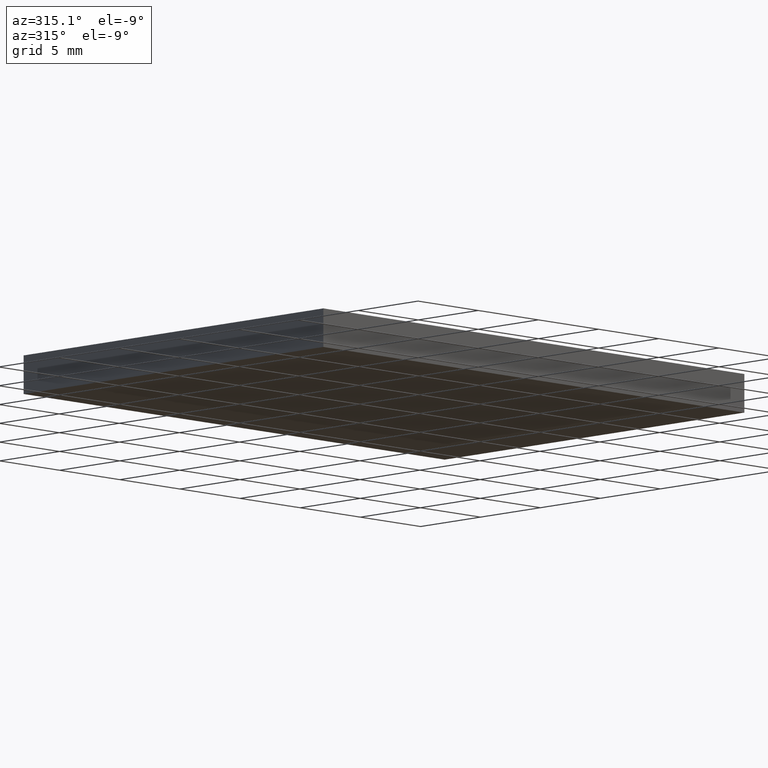
[diagram: clean part render]
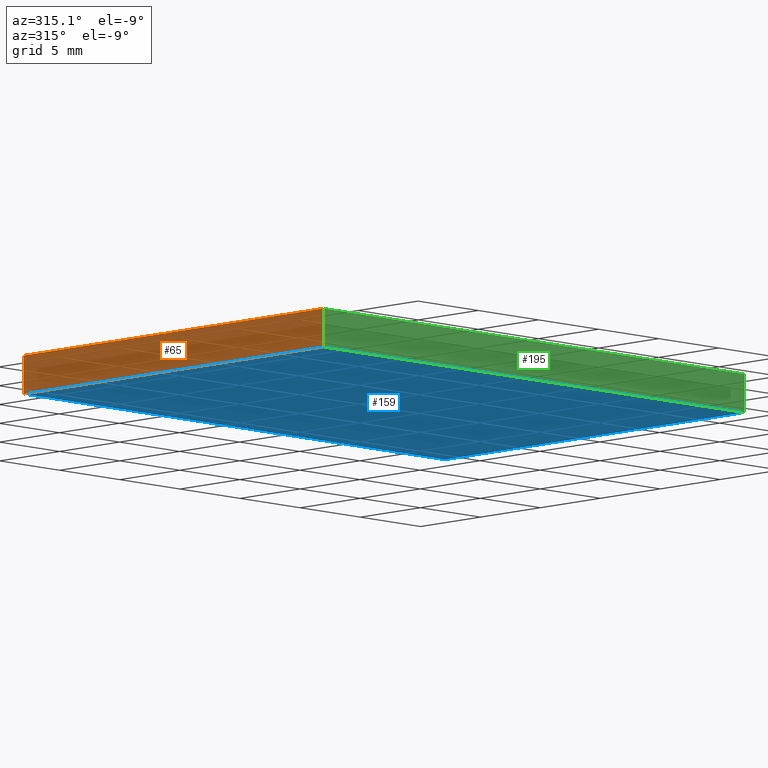
[diagram: same view with three faces highlighted in distinct colors, each labeled with its STEP entity id]
A machine part, auxiliary view with three faces highlighted in distinct colors.
Their STEP definitions:

[orange] entity #65 — the highlighted planar face has unit normal (1, 0, -0).
#13 = FACE_OUTER_BOUND ( 'NONE', #76, .T. ) ;
#17 = EDGE_CURVE ( 'NONE', #172, #158, #48, .T. ) ;
#20 = CARTESIAN_POINT ( 'NONE',  ( 91.11498394228368600, 74.06324183452657900, 2.299999999999999800 ) ) ;
#21 = CARTESIAN_POINT ( 'NONE',  ( 91.11498394228368600, 74.06324183452657900, 2.299999999999999800 ) ) ;
#24 = DIRECTION ( 'NONE',  ( 1.000000000000000000, 0.0000000000000000000, -0.0000000000000000000 ) ) ;
#26 = VECTOR ( 'NONE', #129, 1000.000000000000000 ) ;
#29 = LINE ( 'NONE', #164, #153 ) ;
#31 = LINE ( 'NONE', #20, #26 ) ;
#33 = VECTOR ( 'NONE', #50, 1000.000000000000000 ) ;
#36 = ORIENTED_EDGE ( 'NONE', *, *, #85, .F. ) ;
#40 = LINE ( 'NONE', #82, #104 ) ;
#47 = EDGE_CURVE ( 'NONE', #115, #174, #29, .T. ) ;
#48 = LINE ( 'NONE', #132, #33 ) ;
#49 = CARTESIAN_POINT ( 'NONE',  ( 91.11498394228368600, 49.06324183452660000, 2.299999999999999800 ) ) ;
#50 = DIRECTION ( 'NONE',  ( -0.0000000000000000000, -0.0000000000000000000, -1.000000000000000000 ) ) ;
#60 = ORIENTED_EDGE ( 'NONE', *, *, #156, .T. ) ;
#65 = ADVANCED_FACE ( 'NONE', ( #13 ), #112, .F. ) ;
#76 = EDGE_LOOP ( 'NONE', ( #60, #142, #36, #95 ) ) ;
#82 = CARTESIAN_POINT ( 'NONE',  ( 91.11498394228368600, 74.06324183452657900, 0.0000000000000000000 ) ) ;
#84 = CARTESIAN_POINT ( 'NONE',  ( 91.11498394228368600, 74.06324183452657900, 2.299999999999999800 ) ) ;
#85 = EDGE_CURVE ( 'NONE', #172, #115, #31, .T. ) ;
#95 = ORIENTED_EDGE ( 'NONE', *, *, #17, .T. ) ;
#104 = VECTOR ( 'NONE', #137, 1000.000000000000000 ) ;
#108 = DIRECTION ( 'NONE',  ( -0.0000000000000000000, -0.0000000000000000000, -1.000000000000000000 ) ) ;
#112 = PLANE ( 'NONE',  #143 ) ;
#115 = VERTEX_POINT ( 'NONE', #49 ) ;
#129 = DIRECTION ( 'NONE',  ( 0.0000000000000000000, -1.000000000000000000, 0.0000000000000000000 ) ) ;
#132 = CARTESIAN_POINT ( 'NONE',  ( 91.11498394228368600, 74.06324183452657900, 2.299999999999999800 ) ) ;
#134 = DIRECTION ( 'NONE',  ( -0.0000000000000000000, 0.0000000000000000000, -1.000000000000000000 ) ) ;
#136 = CARTESIAN_POINT ( 'NONE',  ( 91.11498394228368600, 49.06324183452660000, 0.0000000000000000000 ) ) ;
#137 = DIRECTION ( 'NONE',  ( 0.0000000000000000000, -1.000000000000000000, 0.0000000000000000000 ) ) ;
#142 = ORIENTED_EDGE ( 'NONE', *, *, #47, .F. ) ;
#143 = AXIS2_PLACEMENT_3D ( 'NONE', #21, #24, #134 ) ;
#153 = VECTOR ( 'NONE', #108, 1000.000000000000000 ) ;
#156 = EDGE_CURVE ( 'NONE', #158, #174, #40, .T. ) ;
#158 = VERTEX_POINT ( 'NONE', #200 ) ;
#164 = CARTESIAN_POINT ( 'NONE',  ( 91.11498394228368600, 49.06324183452660000, 2.299999999999999800 ) ) ;
#172 = VERTEX_POINT ( 'NONE', #84 ) ;
#174 = VERTEX_POINT ( 'NONE', #136 ) ;
#200 = CARTESIAN_POINT ( 'NONE',  ( 91.11498394228368600, 74.06324183452657900, 0.0000000000000000000 ) ) ;

[blue] entity #159 — the highlighted planar face has unit normal (0, 0, 1).
#1 = CARTESIAN_POINT ( 'NONE',  ( 126.1149839422837100, 74.06324183452659300, 0.0000000000000000000 ) ) ;
#3 = VECTOR ( 'NONE', #91, 1000.000000000000000 ) ;
#12 = DIRECTION ( 'NONE',  ( 1.000000000000000000, 0.0000000000000000000, -0.0000000000000000000 ) ) ;
#32 = EDGE_CURVE ( 'NONE', #174, #180, #123, .T. ) ;
#34 = AXIS2_PLACEMENT_3D ( 'NONE', #114, #98, #12 ) ;
#35 = LINE ( 'NONE', #1, #99 ) ;
#40 = LINE ( 'NONE', #82, #104 ) ;
#42 = EDGE_CURVE ( 'NONE', #165, #158, #128, .T. ) ;
#55 = CARTESIAN_POINT ( 'NONE',  ( 126.1149839422837100, 74.06324183452659300, 0.0000000000000000000 ) ) ;
#67 = DIRECTION ( 'NONE',  ( 1.000000000000000000, -1.982541115402065800E-016, 0.0000000000000000000 ) ) ;
#79 = CARTESIAN_POINT ( 'NONE',  ( 91.11498394228368600, 49.06324183452660000, 0.0000000000000000000 ) ) ;
#81 = CARTESIAN_POINT ( 'NONE',  ( 91.11498394228368600, 74.06324183452657900, 0.0000000000000000000 ) ) ;
#82 = CARTESIAN_POINT ( 'NONE',  ( 91.11498394228368600, 74.06324183452657900, 0.0000000000000000000 ) ) ;
#83 = DIRECTION ( 'NONE',  ( 1.110223024625156700E-015, 1.000000000000000000, -0.0000000000000000000 ) ) ;
#91 = DIRECTION ( 'NONE',  ( -1.000000000000000000, -3.965082230804128700E-016, -0.0000000000000000000 ) ) ;
#94 = ORIENTED_EDGE ( 'NONE', *, *, #32, .F. ) ;
#98 = DIRECTION ( 'NONE',  ( 0.0000000000000000000, 0.0000000000000000000, 1.000000000000000000 ) ) ;
#99 = VECTOR ( 'NONE', #83, 1000.000000000000000 ) ;
#103 = ORIENTED_EDGE ( 'NONE', *, *, #124, .F. ) ;
#104 = VECTOR ( 'NONE', #137, 1000.000000000000000 ) ;
#114 = CARTESIAN_POINT ( 'NONE',  ( 0.0000000000000000000, 0.0000000000000000000, 0.0000000000000000000 ) ) ;
#123 = LINE ( 'NONE', #79, #155 ) ;
#124 = EDGE_CURVE ( 'NONE', #180, #165, #35, .T. ) ;
#128 = LINE ( 'NONE', #81, #3 ) ;
#136 = CARTESIAN_POINT ( 'NONE',  ( 91.11498394228368600, 49.06324183452660000, 0.0000000000000000000 ) ) ;
#137 = DIRECTION ( 'NONE',  ( 0.0000000000000000000, -1.000000000000000000, 0.0000000000000000000 ) ) ;
#154 = ORIENTED_EDGE ( 'NONE', *, *, #156, .F. ) ;
#155 = VECTOR ( 'NONE', #67, 1000.000000000000000 ) ;
#156 = EDGE_CURVE ( 'NONE', #158, #174, #40, .T. ) ;
#158 = VERTEX_POINT ( 'NONE', #200 ) ;
#159 = ADVANCED_FACE ( 'NONE', ( #189 ), #202, .F. ) ;
#165 = VERTEX_POINT ( 'NONE', #55 ) ;
#174 = VERTEX_POINT ( 'NONE', #136 ) ;
#180 = VERTEX_POINT ( 'NONE', #182 ) ;
#182 = CARTESIAN_POINT ( 'NONE',  ( 126.1149839422836900, 49.06324183452659300, 0.0000000000000000000 ) ) ;
#186 = ORIENTED_EDGE ( 'NONE', *, *, #42, .F. ) ;
#189 = FACE_OUTER_BOUND ( 'NONE', #190, .T. ) ;
#190 = EDGE_LOOP ( 'NONE', ( #154, #186, #103, #94 ) ) ;
#200 = CARTESIAN_POINT ( 'NONE',  ( 91.11498394228368600, 74.06324183452657900, 0.0000000000000000000 ) ) ;
#202 = PLANE ( 'NONE',  #34 ) ;

[green] entity #195 — the highlighted planar face has unit normal (0, 1, -0).
#6 = LINE ( 'NONE', #25, #73 ) ;
#9 = ORIENTED_EDGE ( 'NONE', *, *, #179, .F. ) ;
#23 = AXIS2_PLACEMENT_3D ( 'NONE', #167, #44, #56 ) ;
#25 = CARTESIAN_POINT ( 'NONE',  ( 126.1149839422836900, 49.06324183452659300, 2.299999999999999800 ) ) ;
#28 = DIRECTION ( 'NONE',  ( -0.0000000000000000000, -0.0000000000000000000, -1.000000000000000000 ) ) ;
#29 = LINE ( 'NONE', #164, #153 ) ;
#32 = EDGE_CURVE ( 'NONE', #174, #180, #123, .T. ) ;
#41 = CARTESIAN_POINT ( 'NONE',  ( 91.11498394228368600, 49.06324183452660000, 2.299999999999999800 ) ) ;
#44 = DIRECTION ( 'NONE',  ( 1.982541115402066100E-016, 1.000000000000000000, -0.0000000000000000000 ) ) ;
#47 = EDGE_CURVE ( 'NONE', #115, #174, #29, .T. ) ;
#49 = CARTESIAN_POINT ( 'NONE',  ( 91.11498394228368600, 49.06324183452660000, 2.299999999999999800 ) ) ;
#51 = DIRECTION ( 'NONE',  ( 1.000000000000000000, -1.982541115402065800E-016, 0.0000000000000000000 ) ) ;
#53 = VECTOR ( 'NONE', #51, 1000.000000000000000 ) ;
#56 = DIRECTION ( 'NONE',  ( -1.000000000000000000, 1.982541115402066100E-016, 0.0000000000000000000 ) ) ;
#67 = DIRECTION ( 'NONE',  ( 1.000000000000000000, -1.982541115402065800E-016, 0.0000000000000000000 ) ) ;
#69 = CARTESIAN_POINT ( 'NONE',  ( 126.1149839422836900, 49.06324183452659300, 2.299999999999999800 ) ) ;
#73 = VECTOR ( 'NONE', #28, 1000.000000000000000 ) ;
#79 = CARTESIAN_POINT ( 'NONE',  ( 91.11498394228368600, 49.06324183452660000, 0.0000000000000000000 ) ) ;
#86 = LINE ( 'NONE', #41, #53 ) ;
#87 = ORIENTED_EDGE ( 'NONE', *, *, #47, .T. ) ;
#106 = ORIENTED_EDGE ( 'NONE', *, *, #32, .T. ) ;
#108 = DIRECTION ( 'NONE',  ( -0.0000000000000000000, -0.0000000000000000000, -1.000000000000000000 ) ) ;
#113 = FACE_OUTER_BOUND ( 'NONE', #162, .T. ) ;
#115 = VERTEX_POINT ( 'NONE', #49 ) ;
#116 = VERTEX_POINT ( 'NONE', #69 ) ;
#120 = EDGE_CURVE ( 'NONE', #116, #180, #6, .T. ) ;
#123 = LINE ( 'NONE', #79, #155 ) ;
#136 = CARTESIAN_POINT ( 'NONE',  ( 91.11498394228368600, 49.06324183452660000, 0.0000000000000000000 ) ) ;
#152 = ORIENTED_EDGE ( 'NONE', *, *, #120, .F. ) ;
#153 = VECTOR ( 'NONE', #108, 1000.000000000000000 ) ;
#155 = VECTOR ( 'NONE', #67, 1000.000000000000000 ) ;
#162 = EDGE_LOOP ( 'NONE', ( #106, #152, #9, #87 ) ) ;
#164 = CARTESIAN_POINT ( 'NONE',  ( 91.11498394228368600, 49.06324183452660000, 2.299999999999999800 ) ) ;
#167 = CARTESIAN_POINT ( 'NONE',  ( 91.11498394228368600, 49.06324183452660000, 2.299999999999999800 ) ) ;
#169 = PLANE ( 'NONE',  #23 ) ;
#174 = VERTEX_POINT ( 'NONE', #136 ) ;
#179 = EDGE_CURVE ( 'NONE', #115, #116, #86, .T. ) ;
#180 = VERTEX_POINT ( 'NONE', #182 ) ;
#182 = CARTESIAN_POINT ( 'NONE',  ( 126.1149839422836900, 49.06324183452659300, 0.0000000000000000000 ) ) ;
#195 = ADVANCED_FACE ( 'NONE', ( #113 ), #169, .F. ) ;